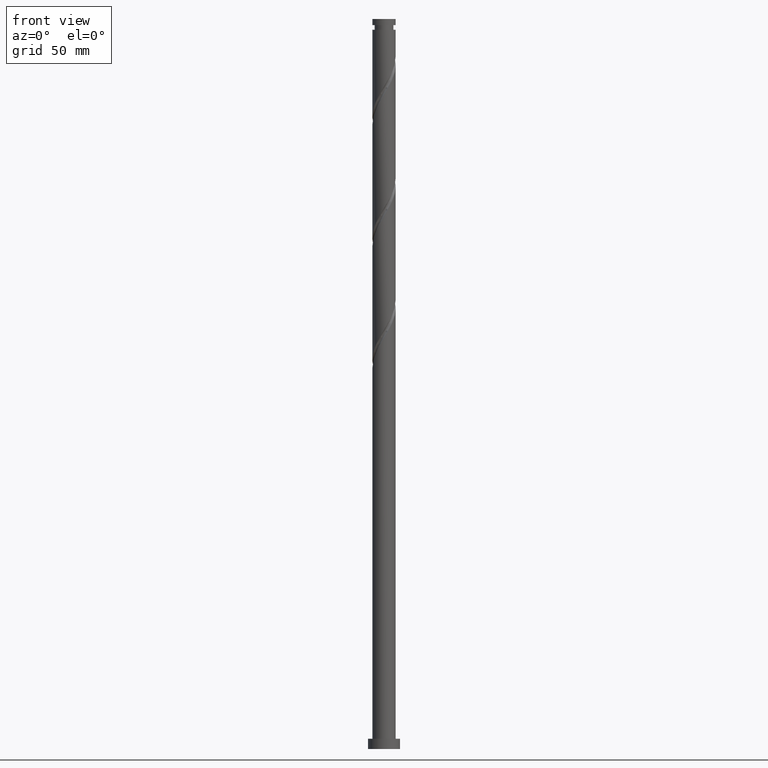
[diagram: clean part render]
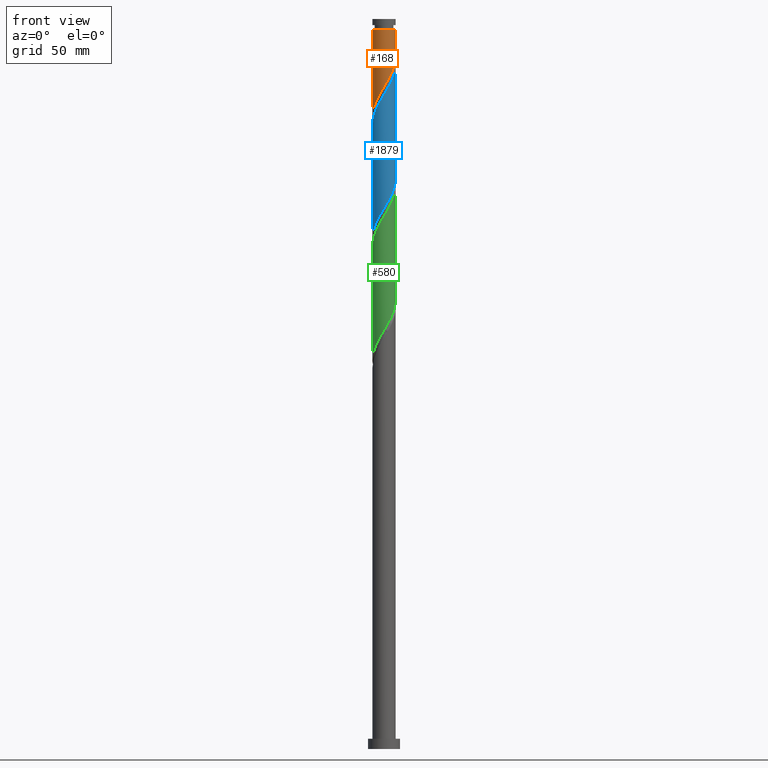
[diagram: same view with three faces highlighted in distinct colors, each labeled with its STEP entity id]
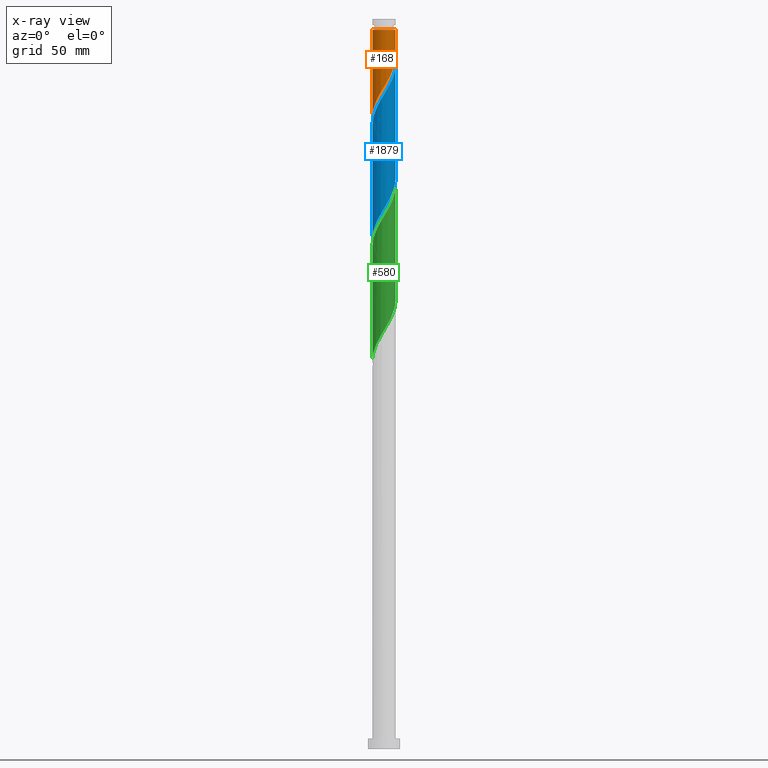
[diagram: x-ray of the same camera — body ghosted, the three highlighted faces saturated]
A machine part, front view with three faces highlighted in distinct colors.
The next image is the same camera in x-ray (body ghosted, the three faces saturated) — at least one of them is partly hidden behind the body in this view.
Their STEP definitions:

[orange] entity #168 — the highlighted cylindrical surface (edge-blend (fillet) strip) has radius 8 mm, axis along (-0, -0, -1).
#48 = CARTESIAN_POINT ( 'NONE',  ( -3.817644651523122157, -7.074349788705234232, 447.0281742140034567 ) ) ;
#81 = EDGE_CURVE ( 'NONE', #243, #973, #880, .T. ) ;
#89 = FACE_OUTER_BOUND ( 'NONE', #525, .T. ) ;
#168 = ADVANCED_FACE ( 'NONE', ( #89 ), #1574, .T. ) ;
#170 = VERTEX_POINT ( 'NONE', #461 ) ;
#182 = VERTEX_POINT ( 'NONE', #1888 ) ;
#196 = CARTESIAN_POINT ( 'NONE',  ( 7.840000000000000746, -1.591979899370599583, 471.7677575473367142 ) ) ;
#206 = CARTESIAN_POINT ( 'NONE',  ( 3.031987717150562478, -7.403178404107801924, 458.7469242140033430 ) ) ;
#218 = CARTESIAN_POINT ( 'NONE',  ( -5.124426858357232106, -6.193632616776999278, 444.4240075473368847 ) ) ;
#227 = DIRECTION ( 'NONE',  ( -0.000000000000000000, -0.000000000000000000, -1.000000000000000000 ) ) ;
#243 = VERTEX_POINT ( 'NONE', #1753 ) ;
#328 = CARTESIAN_POINT ( 'NONE',  ( -8.000000000000000000, 0.000000000000000000, 500.0000000000000000 ) ) ;
#349 = CARTESIAN_POINT ( 'NONE',  ( 0.7560426422623218734, -8.003076604740073208, 454.8406742140033998 ) ) ;
#370 = CARTESIAN_POINT ( 'NONE',  ( 4.418017382144904026, -6.669416946860161843, 461.3510908806701423 ) ) ;
#380 = CARTESIAN_POINT ( 'NONE',  ( 5.634265116796108863, -5.679353536596797092, 463.9552575473368279 ) ) ;
#391 = CARTESIAN_POINT ( 'NONE',  ( 7.999999999999998224, -0.01594122699408290211, 474.3982676374829452 ) ) ;
#461 = CARTESIAN_POINT ( 'NONE',  ( -7.999999999999952927, 0.000000000000000000, 492.6010908806701423 ) ) ;
#507 = CARTESIAN_POINT ( 'NONE',  ( -5.679353536596797092, -5.634265116796109751, 443.1219242140033430 ) ) ;
#525 = EDGE_LOOP ( 'NONE', ( #1483, #1766, #744, #791 ) ) ;
#611 = CARTESIAN_POINT ( 'NONE',  ( 0.000000000000000000, 0.000000000000000000, 500.0000000000000000 ) ) ;
#628 = CARTESIAN_POINT ( 'NONE',  ( 7.999999999999998224, -3.910315218699910762E-15, 474.4246211920001883 ) ) ;
#675 = CARTESIAN_POINT ( 'NONE',  ( -0.03188232739405235522, -7.999936469572738851, 453.5385908806699717 ) ) ;
#695 = CARTESIAN_POINT ( 'NONE',  ( 8.000000000000000000, 9.797174393178825657E-16, 500.0000000000000000 ) ) ;
#696 = CARTESIAN_POINT ( 'NONE',  ( -7.701803129331646680, -2.302838286826536240, 436.6115075473368279 ) ) ;
#744 = ORIENTED_EDGE ( 'NONE', *, *, #1435, .T. ) ;
#765 = DIRECTION ( 'NONE',  ( -1.000000000000000000, 0.000000000000000000, 0.000000000000000000 ) ) ;
#769 = AXIS2_PLACEMENT_3D ( 'NONE', #775, #1426, #765 ) ;
#775 = CARTESIAN_POINT ( 'NONE',  ( 0.000000000000000000, 0.000000000000000000, 492.6010908806701423 ) ) ;
#791 = ORIENTED_EDGE ( 'NONE', *, *, #1819, .F. ) ;
#827 = CARTESIAN_POINT ( 'NONE',  ( 3.761137147474592712, -7.104553678883958057, 460.0490075473368279 ) ) ;
#839 = CARTESIAN_POINT ( 'NONE',  ( -2.364152501690766517, -7.683203665594589005, 449.6323408806701423 ) ) ;
#850 = CARTESIAN_POINT ( 'NONE',  ( 1.529440464544428835, -7.852439867035858612, 456.1427575473367710 ) ) ;
#862 = CARTESIAN_POINT ( 'NONE',  ( 7.074349788705234232, -3.817644651523122601, 467.8615075473367710 ) ) ;
#880 = LINE ( 'NONE', #695, #2093 ) ;
#903 = EDGE_CURVE ( 'NONE', #243, #170, #1732, .T. ) ;
#920 = DIRECTION ( 'NONE',  ( -0.000000000000000000, -0.000000000000000000, -1.000000000000000000 ) ) ;
#973 = VERTEX_POINT ( 'NONE', #628 ) ;
#975 = DIRECTION ( 'NONE',  ( -0.000000000000000000, -0.000000000000000000, -1.000000000000000000 ) ) ;
#1017 = CARTESIAN_POINT ( 'NONE',  ( 7.999999999999998224, -3.910315218699910762E-15, 474.4246211920001315 ) ) ;
#1029 = CARTESIAN_POINT ( 'NONE',  ( -4.471035754940177576, -6.633991202741117199, 445.7260908806700854 ) ) ;
#1038 = CARTESIAN_POINT ( 'NONE',  ( -1.591979899370598917, -7.840000000000000746, 450.9344242140033998 ) ) ;
#1176 = CARTESIAN_POINT ( 'NONE',  ( -6.669416946860161843, -4.418017382144904026, 440.5177575473367710 ) ) ;
#1186 = CARTESIAN_POINT ( 'NONE',  ( 7.996796334405404494, -0.8198072970504346468, 473.0698408806701423 ) ) ;
#1197 = CARTESIAN_POINT ( 'NONE',  ( -7.999999999999998224, 4.708034433954229280E-15, 432.7579545253335596 ) ) ;
#1314 = CARTESIAN_POINT ( 'NONE',  ( 6.633991202741113646, -4.471035754940181128, 466.5594242140034567 ) ) ;
#1348 = CARTESIAN_POINT ( 'NONE',  ( 7.378776727149911174, -3.090898576606947223, 469.1635908806700286 ) ) ;
#1358 = CARTESIAN_POINT ( 'NONE',  ( 7.999936469572738851, -0.03188232739405278543, 474.3719242140033430 ) ) ;
#1426 = DIRECTION ( 'NONE',  ( -0.000000000000000000, -0.000000000000000000, -1.000000000000000000 ) ) ;
#1433 =( BOUNDED_CURVE ( )  B_SPLINE_CURVE ( 2, ( #1017, #391, #1358, #1186, #196, #1839, #1348, #862, #1314, #1830, #380, #1850, #370, #827, #206, #1671, #850, #349, #675, #1810, #1038, #839, #1650, #48, #1029, #218, #507, #1512, #1176, #1490, #1501, #696, #1682, #2006, #1197 ),
 .UNSPECIFIED., .F., .T. ) 
 B_SPLINE_CURVE_WITH_KNOTS ( ( 3, 2, 2, 2, 2, 2, 2, 2, 2, 2, 2, 2, 2, 2, 2, 2, 2, 3 ),
 ( 0.3045286902180871502, 0.3046875000000000000, 0.3125000000000000000, 0.3203125000000000000, 0.3281250000000000000, 0.3359375000000000000, 0.3437500000000000000, 0.3515625000000000000, 0.3593750000000000000, 0.3671875000000000000, 0.3750000000000000000, 0.3828125000000000000, 0.3906250000000000000, 0.3984375000000000000, 0.4062500000000000000, 0.4140625000000000000, 0.4218750000000000000, 0.4295286902180873723 ),
 .UNSPECIFIED. ) 
 CURVE ( )  GEOMETRIC_REPRESENTATION_ITEM ( )  RATIONAL_B_SPLINE_CURVE ( ( 0.9089165573359369033, 0.9090019243628416623, 0.9090909090909334855, 0.9047133878838395926, 0.9090909090909334855, 0.9047133878838395926, 0.9090909090909334855, 0.9047133878838395926, 0.9090909090909334855, 0.9047133878838395926, 0.9090909090909334855, 0.9047133878838395926, 0.9090909090909334855, 0.9047133878838395926, 0.9090909090909334855, 0.9047133878838395926, 0.9090909090909334855, 0.9047133878838395926, 0.9090909090909334855, 0.9047133878838395926, 0.9090909090909334855, 0.9047133878838395926, 0.9090909090909334855, 0.9047133878838395926, 0.9090909090909334855, 0.9047133878838395926, 0.9090909090909334855, 0.9047133878838395926, 0.9090909090909334855, 0.9047133878838395926, 0.9090909090909334855, 0.9047133878838395926, 0.9090909090909334855, 0.9048023726119313048, 0.9089165573359370143 ) ) 
 REPRESENTATION_ITEM ( '' )  );
#1435 = EDGE_CURVE ( 'NONE', #170, #182, #1514, .T. ) ;
#1483 = ORIENTED_EDGE ( 'NONE', *, *, #81, .F. ) ;
#1490 = CARTESIAN_POINT ( 'NONE',  ( -7.104553678883958057, -3.761137147474594045, 439.2156742140033430 ) ) ;
#1501 = CARTESIAN_POINT ( 'NONE',  ( -7.403178404107800148, -3.031987717150562478, 437.9135908806701991 ) ) ;
#1512 = CARTESIAN_POINT ( 'NONE',  ( -6.234280214836362966, -5.074897616815214896, 441.8198408806701991 ) ) ;
#1514 = LINE ( 'NONE', #328, #1610 ) ;
#1574 = CYLINDRICAL_SURFACE ( 'NONE', #1895, 8.000000000000000000 ) ;
#1610 = VECTOR ( 'NONE', #975, 1000.000000000000000 ) ;
#1650 = CARTESIAN_POINT ( 'NONE',  ( -3.090898576606947223, -7.378776727149912062, 448.3302575473368279 ) ) ;
#1671 = CARTESIAN_POINT ( 'NONE',  ( 2.302838286826536240, -7.701803129331646680, 457.4448408806701991 ) ) ;
#1682 = CARTESIAN_POINT ( 'NONE',  ( -7.852439867035857723, -1.529440464544429279, 435.3094242140033998 ) ) ;
#1732 = CIRCLE ( 'NONE', #769, 7.999999999999952927 ) ;
#1753 = CARTESIAN_POINT ( 'NONE',  ( 7.999999999999952927, 9.797174393178798047E-16, 492.6010908806701423 ) ) ;
#1766 = ORIENTED_EDGE ( 'NONE', *, *, #903, .T. ) ;
#1810 = CARTESIAN_POINT ( 'NONE',  ( -0.8198072970504305390, -7.996796334405404494, 452.2365075473368279 ) ) ;
#1819 = EDGE_CURVE ( 'NONE', #973, #182, #1433, .T. ) ;
#1830 = CARTESIAN_POINT ( 'NONE',  ( 6.193632616776999278, -5.124426858357232106, 465.2573408806701423 ) ) ;
#1839 = CARTESIAN_POINT ( 'NONE',  ( 7.683203665594592557, -2.364152501690764296, 470.4656742140033998 ) ) ;
#1850 = CARTESIAN_POINT ( 'NONE',  ( 5.074897616815213119, -6.234280214836365630, 462.6531742140035135 ) ) ;
#1888 = CARTESIAN_POINT ( 'NONE',  ( -7.999999999999998224, 4.708034433954230069E-15, 432.7579545253335596 ) ) ;
#1895 = AXIS2_PLACEMENT_3D ( 'NONE', #611, #920, #1918 ) ;
#1918 = DIRECTION ( 'NONE',  ( -1.000000000000000000, 0.000000000000000000, 0.000000000000000000 ) ) ;
#2006 = CARTESIAN_POINT ( 'NONE',  ( -8.000000000000005329, -0.7718385194318326814, 434.0339346307495703 ) ) ;
#2093 = VECTOR ( 'NONE', #227, 1000.000000000000000 ) ;

[blue] entity #1879 — the highlighted cylindrical surface (edge-blend (fillet) strip) has radius 8 mm, axis along (-0, -0, -1).
#14 = CARTESIAN_POINT ( 'NONE',  ( -7.999936469572752173, -0.03188232739405161970, 427.4969242140035135 ) ) ;
#29 = CARTESIAN_POINT ( 'NONE',  ( -7.996796334405415152, -0.8198072970504290957, 428.7990075473367710 ) ) ;
#50 =( BOUNDED_CURVE ( )  B_SPLINE_CURVE ( 2, ( #288, #1227, #1876, #420, #1744, #2063, #1259, #1552, #909, #450, #1398, #1068, #1897, #1908, #1216, #408, #1056, #430, #1711, #1723, #247, #898, #279, #257, #929, #87, #735, #1734, #269, #919, #108, #756, #1408, #441, #638 ),
 .UNSPECIFIED., .F., .T. ) 
 B_SPLINE_CURVE_WITH_KNOTS ( ( 3, 2, 2, 2, 2, 2, 2, 2, 2, 2, 2, 2, 2, 2, 2, 2, 2, 3 ),
 ( 0.5545286902180872612, 0.5546875000000000000, 0.5625000000000000000, 0.5703125000000000000, 0.5781250000000000000, 0.5859375000000000000, 0.5937500000000000000, 0.6015625000000000000, 0.6093750000000000000, 0.6171875000000000000, 0.6250000000000000000, 0.6328125000000000000, 0.6406250000000000000, 0.6484375000000000000, 0.6562500000000000000, 0.6640625000000000000, 0.6718750000000000000, 0.6795286902180872612 ),
 .UNSPECIFIED. ) 
 CURVE ( )  GEOMETRIC_REPRESENTATION_ITEM ( )  RATIONAL_B_SPLINE_CURVE ( ( 0.9089165573359369033, 0.9090019243628416623, 0.9090909090909334855, 0.9047133878838395926, 0.9090909090909334855, 0.9047133878838395926, 0.9090909090909334855, 0.9047133878838395926, 0.9090909090909334855, 0.9047133878838395926, 0.9090909090909334855, 0.9047133878838395926, 0.9090909090909334855, 0.9047133878838395926, 0.9090909090909334855, 0.9047133878838395926, 0.9090909090909334855, 0.9047133878838395926, 0.9090909090909334855, 0.9047133878838395926, 0.9090909090909334855, 0.9047133878838395926, 0.9090909090909334855, 0.9047133878838395926, 0.9090909090909334855, 0.9047133878838395926, 0.9090909090909334855, 0.9047133878838395926, 0.9090909090909334855, 0.9047133878838395926, 0.9090909090909334855, 0.9047133878838395926, 0.9090909090909334855, 0.9048023726119314158, 0.9089165573359369033 ) ) 
 REPRESENTATION_ITEM ( '' )  );
#58 = CARTESIAN_POINT ( 'NONE',  ( -2.302838286826541125, -7.701803129331653786, 444.4240075473368847 ) ) ;
#63 = VERTEX_POINT ( 'NONE', #238 ) ;
#68 = CARTESIAN_POINT ( 'NONE',  ( 2.364152501690767849, -7.683203665594601439, 452.2365075473367710 ) ) ;
#87 = CARTESIAN_POINT ( 'NONE',  ( -5.124426858357232106, -6.193632616776999278, 361.0906742140035135 ) ) ;
#108 = CARTESIAN_POINT ( 'NONE',  ( -7.403178404107800148, -3.031987717150562478, 354.5802575473367710 ) ) ;
#151 = ORIENTED_EDGE ( 'NONE', *, *, #1584, .F. ) ;
#183 = CARTESIAN_POINT ( 'NONE',  ( -8.000000000000010658, -0.01594122699408167046, 427.4705807905239112 ) ) ;
#198 = LINE ( 'NONE', #1293, #1644 ) ;
#238 = CARTESIAN_POINT ( 'NONE',  ( -7.999999999999998224, 1.585746514809287056E-14, 349.4246211920003020 ) ) ;
#239 = LINE ( 'NONE', #401, #383 ) ;
#247 = CARTESIAN_POINT ( 'NONE',  ( -1.591979899370598917, -7.840000000000000746, 367.6010908806701423 ) ) ;
#257 = CARTESIAN_POINT ( 'NONE',  ( -3.817644651523122157, -7.074349788705234232, 363.6948408806701423 ) ) ;
#269 = CARTESIAN_POINT ( 'NONE',  ( -6.669416946860161843, -4.418017382144904026, 357.1844242140034567 ) ) ;
#272 = CARTESIAN_POINT ( 'NONE',  ( 1.591979899370598250, -7.840000000000009628, 450.9344242140035135 ) ) ;
#279 = CARTESIAN_POINT ( 'NONE',  ( -3.090898576606947223, -7.378776727149912062, 364.9969242140035135 ) ) ;
#288 = CARTESIAN_POINT ( 'NONE',  ( 7.999999999999998224, 7.231660175669996548E-15, 391.0912878586668739 ) ) ;
#360 = CARTESIAN_POINT ( 'NONE',  ( -4.418017382144911132, -6.669416946860166284, 440.5177575473368279 ) ) ;
#383 = VECTOR ( 'NONE', #1704, 1000.000000000000000 ) ;
#401 = CARTESIAN_POINT ( 'NONE',  ( -8.000000000000000000, 0.000000000000000000, 500.0000000000000000 ) ) ;
#408 = CARTESIAN_POINT ( 'NONE',  ( 2.302838286826536240, -7.701803129331646680, 374.1115075473368847 ) ) ;
#420 = CARTESIAN_POINT ( 'NONE',  ( 7.996796334405404494, -0.8198072970504346468, 389.7365075473368279 ) ) ;
#430 = CARTESIAN_POINT ( 'NONE',  ( 0.7560426422623218734, -8.003076604740073208, 371.5073408806700286 ) ) ;
#433 = CARTESIAN_POINT ( 'NONE',  ( 8.000000000000010658, -7.828085757168507768E-17, 469.1108939026734106 ) ) ;
#441 = CARTESIAN_POINT ( 'NONE',  ( -8.000000000000001776, -0.7718385194318436726, 350.7006012974162559 ) ) ;
#450 = CARTESIAN_POINT ( 'NONE',  ( 6.193632616776999278, -5.124426858357232106, 381.9240075473368279 ) ) ;
#484 =( BOUNDED_CURVE ( )  B_SPLINE_CURVE ( 2, ( #1326, #183, #14, #29, #1976, #687, #706, #1987, #519, #1153, #531, #1167, #360, #1997, #541, #58, #1005, #551, #1659, #1060, #272, #68, #561, #1391, #1881, #1049, #739, #891, #1555, #1567, #1889, #2026, #1726, #1380, #433 ),
 .UNSPECIFIED., .F., .T. ) 
 B_SPLINE_CURVE_WITH_KNOTS ( ( 3, 2, 2, 2, 2, 2, 2, 2, 2, 2, 2, 2, 2, 2, 2, 2, 2, 3 ),
 ( 0.5545286902180871502, 0.5546875000000000000, 0.5625000000000000000, 0.5703125000000000000, 0.5781250000000000000, 0.5859375000000000000, 0.5937500000000000000, 0.6015625000000000000, 0.6093750000000000000, 0.6171875000000000000, 0.6250000000000000000, 0.6328125000000000000, 0.6406250000000000000, 0.6484375000000000000, 0.6562500000000000000, 0.6640625000000000000, 0.6718750000000000000, 0.6795286902180874833 ),
 .UNSPECIFIED. ) 
 CURVE ( )  GEOMETRIC_REPRESENTATION_ITEM ( )  RATIONAL_B_SPLINE_CURVE ( ( 0.9089165573359422323, 0.9090019243628469914, 0.9090909090909388146, 0.9047133878838449217, 0.9090909090909388146, 0.9047133878838449217, 0.9090909090909388146, 0.9047133878838449217, 0.9090909090909388146, 0.9047133878838449217, 0.9090909090909388146, 0.9047133878838449217, 0.9090909090909388146, 0.9047133878838449217, 0.9090909090909388146, 0.9047133878838449217, 0.9090909090909388146, 0.9047133878838449217, 0.9090909090909388146, 0.9047133878838449217, 0.9090909090909388146, 0.9047133878838449217, 0.9090909090909388146, 0.9047133878838449217, 0.9090909090909388146, 0.9047133878838449217, 0.9090909090909388146, 0.9047133878838449217, 0.9090909090909388146, 0.9047133878838449217, 0.9090909090909388146, 0.9047133878838449217, 0.9090909090909388146, 0.9048023726119365229, 0.9089165573359425654 ) ) 
 REPRESENTATION_ITEM ( '' )  );
#519 = CARTESIAN_POINT ( 'NONE',  ( -6.633991202741127857, -4.471035754940181128, 435.3094242140034567 ) ) ;
#531 = CARTESIAN_POINT ( 'NONE',  ( -5.634265116796117745, -5.679353536596803309, 437.9135908806701991 ) ) ;
#541 = CARTESIAN_POINT ( 'NONE',  ( -3.031987717150570028, -7.403178404107809918, 443.1219242140035135 ) ) ;
#551 = CARTESIAN_POINT ( 'NONE',  ( -0.7560426422623260923, -8.003076604740083866, 447.0281742140033998 ) ) ;
#561 = CARTESIAN_POINT ( 'NONE',  ( 3.090898576606948556, -7.378776727149924497, 453.5385908806701991 ) ) ;
#638 = CARTESIAN_POINT ( 'NONE',  ( -7.999999999999998224, 1.585746514809287056E-14, 349.4246211920003020 ) ) ;
#665 = DIRECTION ( 'NONE',  ( -0.000000000000000000, -0.000000000000000000, -1.000000000000000000 ) ) ;
#687 = CARTESIAN_POINT ( 'NONE',  ( -7.683203665594601439, -2.364152501690768293, 431.4031742140033998 ) ) ;
#706 = CARTESIAN_POINT ( 'NONE',  ( -7.378776727149924497, -3.090898576606947223, 432.7052575473368847 ) ) ;
#735 = CARTESIAN_POINT ( 'NONE',  ( -5.679353536596797092, -5.634265116796109751, 359.7885908806700286 ) ) ;
#739 = CARTESIAN_POINT ( 'NONE',  ( 5.679353536596803309, -5.634265116796118633, 458.7469242140035135 ) ) ;
#753 = AXIS2_PLACEMENT_3D ( 'NONE', #994, #665, #1477 ) ;
#756 = CARTESIAN_POINT ( 'NONE',  ( -7.701803129331646680, -2.302838286826536240, 353.2781742140034567 ) ) ;
#817 = DIRECTION ( 'NONE',  ( -0.000000000000000000, -0.000000000000000000, -1.000000000000000000 ) ) ;
#826 = EDGE_LOOP ( 'NONE', ( #151, #1191, #1798, #833 ) ) ;
#833 = ORIENTED_EDGE ( 'NONE', *, *, #956, .F. ) ;
#891 = CARTESIAN_POINT ( 'NONE',  ( 6.234280214836370071, -5.074897616815223778, 460.0490075473368847 ) ) ;
#898 = CARTESIAN_POINT ( 'NONE',  ( -2.364152501690766517, -7.683203665594589005, 366.2990075473368279 ) ) ;
#909 = CARTESIAN_POINT ( 'NONE',  ( 6.633991202741113646, -4.471035754940181128, 383.2260908806700286 ) ) ;
#919 = CARTESIAN_POINT ( 'NONE',  ( -7.104553678883958057, -3.761137147474594045, 355.8823408806701991 ) ) ;
#929 = CARTESIAN_POINT ( 'NONE',  ( -4.471035754940177576, -6.633991202741117199, 362.3927575473367710 ) ) ;
#956 = EDGE_CURVE ( 'NONE', #1148, #63, #50, .T. ) ;
#994 = CARTESIAN_POINT ( 'NONE',  ( 0.000000000000000000, 0.000000000000000000, 500.0000000000000000 ) ) ;
#1005 = CARTESIAN_POINT ( 'NONE',  ( -1.529440464544434386, -7.852439867035869270, 445.7260908806701423 ) ) ;
#1049 = CARTESIAN_POINT ( 'NONE',  ( 5.124426858357238324, -6.193632616777009936, 457.4448408806701423 ) ) ;
#1056 = CARTESIAN_POINT ( 'NONE',  ( 1.529440464544428835, -7.852439867035858612, 372.8094242140034567 ) ) ;
#1060 = CARTESIAN_POINT ( 'NONE',  ( 0.8198072970504286516, -7.996796334405415152, 449.6323408806700854 ) ) ;
#1068 = CARTESIAN_POINT ( 'NONE',  ( 5.074897616815213119, -6.234280214836365630, 379.3198408806701423 ) ) ;
#1138 = CARTESIAN_POINT ( 'NONE',  ( 7.999999999999998224, 7.231660175669996548E-15, 391.0912878586668739 ) ) ;
#1148 = VERTEX_POINT ( 'NONE', #1138 ) ;
#1153 = CARTESIAN_POINT ( 'NONE',  ( -6.193632616777009936, -5.124426858357240100, 436.6115075473369416 ) ) ;
#1167 = CARTESIAN_POINT ( 'NONE',  ( -5.074897616815223778, -6.234280214836370071, 439.2156742140034567 ) ) ;
#1188 = CARTESIAN_POINT ( 'NONE',  ( 8.000000000000010658, -7.828085757168507768E-17, 469.1108939026734106 ) ) ;
#1191 = ORIENTED_EDGE ( 'NONE', *, *, #1904, .F. ) ;
#1216 = CARTESIAN_POINT ( 'NONE',  ( 3.031987717150562478, -7.403178404107801924, 375.4135908806700286 ) ) ;
#1227 = CARTESIAN_POINT ( 'NONE',  ( 7.999999999999998224, -0.01594122699409404598, 391.0649343041495740 ) ) ;
#1259 = CARTESIAN_POINT ( 'NONE',  ( 7.378776727149911174, -3.090898576606947223, 385.8302575473367710 ) ) ;
#1293 = CARTESIAN_POINT ( 'NONE',  ( 8.000000000000000000, 9.797174393178825657E-16, 500.0000000000000000 ) ) ;
#1326 = CARTESIAN_POINT ( 'NONE',  ( -8.000000000000010658, 8.517702835776209769E-15, 427.4442272360066113 ) ) ;
#1338 = FACE_OUTER_BOUND ( 'NONE', #826, .T. ) ;
#1380 = CARTESIAN_POINT ( 'NONE',  ( 8.000000000000017764, -0.7718385194318260201, 467.8349137972574567 ) ) ;
#1391 = CARTESIAN_POINT ( 'NONE',  ( 3.817644651523124821, -7.074349788705244002, 454.8406742140033430 ) ) ;
#1398 = CARTESIAN_POINT ( 'NONE',  ( 5.634265116796108863, -5.679353536596797092, 380.6219242140035703 ) ) ;
#1408 = CARTESIAN_POINT ( 'NONE',  ( -7.852439867035857723, -1.529440464544429279, 351.9760908806701423 ) ) ;
#1477 = DIRECTION ( 'NONE',  ( -1.000000000000000000, 0.000000000000000000, 0.000000000000000000 ) ) ;
#1479 = CARTESIAN_POINT ( 'NONE',  ( -8.000000000000010658, 8.517702835776209769E-15, 427.4442272360066113 ) ) ;
#1523 = CYLINDRICAL_SURFACE ( 'NONE', #753, 8.000000000000000000 ) ;
#1552 = CARTESIAN_POINT ( 'NONE',  ( 7.074349788705234232, -3.817644651523122601, 384.5281742140035135 ) ) ;
#1555 = CARTESIAN_POINT ( 'NONE',  ( 6.669416946860166284, -4.418017382144913796, 461.3510908806700854 ) ) ;
#1567 = CARTESIAN_POINT ( 'NONE',  ( 7.104553678883962498, -3.761137147474604259, 462.6531742140035135 ) ) ;
#1584 = EDGE_CURVE ( 'NONE', #1666, #1148, #198, .T. ) ;
#1638 = VERTEX_POINT ( 'NONE', #1479 ) ;
#1644 = VECTOR ( 'NONE', #817, 1000.000000000000000 ) ;
#1659 = CARTESIAN_POINT ( 'NONE',  ( 0.03188232739404948252, -7.999936469572753062, 448.3302575473369416 ) ) ;
#1666 = VERTEX_POINT ( 'NONE', #1188 ) ;
#1704 = DIRECTION ( 'NONE',  ( -0.000000000000000000, -0.000000000000000000, -1.000000000000000000 ) ) ;
#1711 = CARTESIAN_POINT ( 'NONE',  ( -0.03188232739405235522, -7.999936469572738851, 370.2052575473367710 ) ) ;
#1723 = CARTESIAN_POINT ( 'NONE',  ( -0.8198072970504305390, -7.996796334405404494, 368.9031742140034567 ) ) ;
#1726 = CARTESIAN_POINT ( 'NONE',  ( 7.852439867035869270, -1.529440464544437717, 466.5594242140036272 ) ) ;
#1734 = CARTESIAN_POINT ( 'NONE',  ( -6.234280214836362966, -5.074897616815214896, 358.4865075473368847 ) ) ;
#1744 = CARTESIAN_POINT ( 'NONE',  ( 7.840000000000000746, -1.591979899370599583, 388.4344242140034567 ) ) ;
#1798 = ORIENTED_EDGE ( 'NONE', *, *, #2032, .T. ) ;
#1876 = CARTESIAN_POINT ( 'NONE',  ( 7.999936469572738851, -0.03188232739405278543, 391.0385908806700854 ) ) ;
#1879 = ADVANCED_FACE ( 'NONE', ( #1338 ), #1523, .T. ) ;
#1881 = CARTESIAN_POINT ( 'NONE',  ( 4.471035754940180240, -6.633991202741127857, 456.1427575473368279 ) ) ;
#1889 = CARTESIAN_POINT ( 'NONE',  ( 7.403178404107809030, -3.031987717150570028, 463.9552575473368279 ) ) ;
#1897 = CARTESIAN_POINT ( 'NONE',  ( 4.418017382144904026, -6.669416946860161843, 378.0177575473368279 ) ) ;
#1904 = EDGE_CURVE ( 'NONE', #1638, #1666, #484, .T. ) ;
#1908 = CARTESIAN_POINT ( 'NONE',  ( 3.761137147474592712, -7.104553678883958057, 376.7156742140035135 ) ) ;
#1976 = CARTESIAN_POINT ( 'NONE',  ( -7.840000000000009628, -1.591979899370598472, 430.1010908806702560 ) ) ;
#1987 = CARTESIAN_POINT ( 'NONE',  ( -7.074349788705244002, -3.817644651523124821, 434.0073408806700854 ) ) ;
#1997 = CARTESIAN_POINT ( 'NONE',  ( -3.761137147474599818, -7.104553678883965162, 441.8198408806700854 ) ) ;
#2026 = CARTESIAN_POINT ( 'NONE',  ( 7.701803129331653786, -2.302838286826541125, 465.2573408806700286 ) ) ;
#2032 = EDGE_CURVE ( 'NONE', #1638, #63, #239, .T. ) ;
#2063 = CARTESIAN_POINT ( 'NONE',  ( 7.683203665594592557, -2.364152501690764296, 387.1323408806701991 ) ) ;

[green] entity #580 — the highlighted cylindrical surface (edge-blend (fillet) strip) has radius 8 mm, axis along (-0, -0, -1).
#6 = CARTESIAN_POINT ( 'NONE',  ( 0.7560426422623218734, -8.003076604740073208, 288.1740075473368847 ) ) ;
#31 = CARTESIAN_POINT ( 'NONE',  ( -0.03188232739405235522, -7.999936469572738851, 286.8719242140035135 ) ) ;
#40 = CARTESIAN_POINT ( 'NONE',  ( 5.074897616815213119, -6.234280214836365630, 295.9865075473367710 ) ) ;
#90 = CARTESIAN_POINT ( 'NONE',  ( 7.104553678883962498, -3.761137147474604259, 379.3198408806701423 ) ) ;
#102 = CARTESIAN_POINT ( 'NONE',  ( -5.074897616815223778, -6.234280214836370071, 355.8823408806701423 ) ) ;
#111 = CARTESIAN_POINT ( 'NONE',  ( -2.302838286826541125, -7.701803129331653786, 361.0906742140033998 ) ) ;
#153 = CARTESIAN_POINT ( 'NONE',  ( 7.840000000000000746, -1.591979899370599583, 305.1010908806700854 ) ) ;
#171 = CARTESIAN_POINT ( 'NONE',  ( -7.999999999999998224, 1.585746514809287056E-14, 266.0912878586669308 ) ) ;
#250 = CARTESIAN_POINT ( 'NONE',  ( -7.074349788705244002, -3.817644651523124821, 350.6740075473367142 ) ) ;
#254 = VERTEX_POINT ( 'NONE', #289 ) ;
#260 = CARTESIAN_POINT ( 'NONE',  ( -7.996796334405415152, -0.8198072970504290957, 345.4656742140034567 ) ) ;
#285 = CARTESIAN_POINT ( 'NONE',  ( 7.999999999999998224, 7.231660175669996548E-15, 307.7579545253336164 ) ) ;
#289 = CARTESIAN_POINT ( 'NONE',  ( 7.999999999999998224, 7.231660175669996548E-15, 307.7579545253336732 ) ) ;
#362 = CARTESIAN_POINT ( 'NONE',  ( -6.669416946860161843, -4.418017382144904026, 273.8510908806701423 ) ) ;
#372 = CARTESIAN_POINT ( 'NONE',  ( -1.591979899370598917, -7.840000000000000746, 284.2677575473367710 ) ) ;
#412 = CARTESIAN_POINT ( 'NONE',  ( 8.000000000000017764, -0.7718385194318260201, 384.5015804639240287 ) ) ;
#417 = VECTOR ( 'NONE', #966, 1000.000000000000000 ) ;
#423 = CARTESIAN_POINT ( 'NONE',  ( -7.683203665594601439, -2.364152501690768293, 348.0698408806701423 ) ) ;
#443 = CARTESIAN_POINT ( 'NONE',  ( 4.471035754940180240, -6.633991202741127857, 372.8094242140036272 ) ) ;
#487 = CARTESIAN_POINT ( 'NONE',  ( -7.852439867035857723, -1.529440464544429279, 268.6427575473368279 ) ) ;
#497 = CARTESIAN_POINT ( 'NONE',  ( -8.000000000000010658, 8.517702835776209769E-15, 344.1108939026732401 ) ) ;
#527 = DIRECTION ( 'NONE',  ( -1.000000000000000000, 0.000000000000000000, 0.000000000000000000 ) ) ;
#533 = CARTESIAN_POINT ( 'NONE',  ( 2.302838286826536240, -7.701803129331646680, 290.7781742140035703 ) ) ;
#572 = CARTESIAN_POINT ( 'NONE',  ( -7.840000000000009628, -1.591979899370598472, 346.7677575473368279 ) ) ;
#580 = ADVANCED_FACE ( 'NONE', ( #1173 ), #1509, .T. ) ;
#583 = CARTESIAN_POINT ( 'NONE',  ( 3.817644651523124821, -7.074349788705244002, 371.5073408806701991 ) ) ;
#593 = CARTESIAN_POINT ( 'NONE',  ( 7.701803129331653786, -2.302838286826541125, 381.9240075473368279 ) ) ;
#602 = CARTESIAN_POINT ( 'NONE',  ( -5.634265116796117745, -5.679353536596803309, 354.5802575473368847 ) ) ;
#614 = CARTESIAN_POINT ( 'NONE',  ( 7.378776727149911174, -3.090898576606947223, 302.4969242140035135 ) ) ;
#656 = CARTESIAN_POINT ( 'NONE',  ( 6.193632616776999278, -5.124426858357232106, 298.5906742140034567 ) ) ;
#667 = CARTESIAN_POINT ( 'NONE',  ( -3.817644651523122157, -7.074349788705234232, 280.3615075473368847 ) ) ;
#689 = CARTESIAN_POINT ( 'NONE',  ( -0.8198072970504305390, -7.996796334405404494, 285.5698408806701423 ) ) ;
#716 = CARTESIAN_POINT ( 'NONE',  ( 0.03188232739404948252, -7.999936469572753062, 364.9969242140035135 ) ) ;
#750 = CARTESIAN_POINT ( 'NONE',  ( -8.000000000000010658, -0.01594122699405380733, 344.1372474571904831 ) ) ;
#758 = CARTESIAN_POINT ( 'NONE',  ( 7.852439867035869270, -1.529440464544437717, 383.2260908806701991 ) ) ;
#772 = CARTESIAN_POINT ( 'NONE',  ( 7.999936469572738851, -0.03188232739405278543, 307.7052575473367710 ) ) ;
#829 = CARTESIAN_POINT ( 'NONE',  ( 1.529440464544428835, -7.852439867035858612, 289.4760908806700854 ) ) ;
#881 = CARTESIAN_POINT ( 'NONE',  ( -0.7560426422623260923, -8.003076604740083866, 363.6948408806701423 ) ) ;
#901 = CARTESIAN_POINT ( 'NONE',  ( -6.633991202741127857, -4.471035754940181128, 351.9760908806701423 ) ) ;
#912 = CARTESIAN_POINT ( 'NONE',  ( -4.418017382144911132, -6.669416946860166284, 357.1844242140035703 ) ) ;
#921 = CARTESIAN_POINT ( 'NONE',  ( -6.193632616777009936, -5.124426858357240100, 353.2781742140035135 ) ) ;
#935 = CARTESIAN_POINT ( 'NONE',  ( 7.999999999999998224, -0.01594122699407175131, 307.7316009708163733 ) ) ;
#966 = DIRECTION ( 'NONE',  ( -0.000000000000000000, -0.000000000000000000, -1.000000000000000000 ) ) ;
#985 = CARTESIAN_POINT ( 'NONE',  ( 3.031987717150562478, -7.403178404107801924, 292.0802575473367142 ) ) ;
#999 =( BOUNDED_CURVE ( )  B_SPLINE_CURVE ( 2, ( #285, #935, #772, #1423, #153, #2068, #614, #1263, #1955, #656, #1169, #40, #1340, #1631, #985, #533, #829, #6, #31, #689, #372, #1824, #1019, #667, #1989, #1178, #1317, #1832, #362, #1800, #1007, #1673, #487, #1134, #1789 ),
 .UNSPECIFIED., .F., .T. ) 
 B_SPLINE_CURVE_WITH_KNOTS ( ( 3, 2, 2, 2, 2, 2, 2, 2, 2, 2, 2, 2, 2, 2, 2, 2, 2, 3 ),
 ( 0.8045286902180870392, 0.8046875000000000000, 0.8125000000000000000, 0.8203125000000000000, 0.8281250000000000000, 0.8359375000000000000, 0.8437500000000000000, 0.8515625000000000000, 0.8593750000000000000, 0.8671875000000000000, 0.8750000000000000000, 0.8828125000000000000, 0.8906250000000000000, 0.8984375000000000000, 0.9062500000000000000, 0.9140625000000000000, 0.9218750000000000000, 0.9295286902180872612 ),
 .UNSPECIFIED. ) 
 CURVE ( )  GEOMETRIC_REPRESENTATION_ITEM ( )  RATIONAL_B_SPLINE_CURVE ( ( 0.9089165573359367922, 0.9090019243628416623, 0.9090909090909334855, 0.9047133878838395926, 0.9090909090909334855, 0.9047133878838395926, 0.9090909090909334855, 0.9047133878838395926, 0.9090909090909334855, 0.9047133878838395926, 0.9090909090909334855, 0.9047133878838395926, 0.9090909090909334855, 0.9047133878838395926, 0.9090909090909334855, 0.9047133878838395926, 0.9090909090909334855, 0.9047133878838395926, 0.9090909090909334855, 0.9047133878838395926, 0.9090909090909334855, 0.9047133878838395926, 0.9090909090909334855, 0.9047133878838395926, 0.9090909090909334855, 0.9047133878838395926, 0.9090909090909334855, 0.9047133878838395926, 0.9090909090909334855, 0.9047133878838395926, 0.9090909090909334855, 0.9047133878838395926, 0.9090909090909334855, 0.9048023726119314158, 0.9089165573359369033 ) ) 
 REPRESENTATION_ITEM ( '' )  );
#1007 = CARTESIAN_POINT ( 'NONE',  ( -7.403178404107800148, -3.031987717150562478, 271.2469242140035135 ) ) ;
#1019 = CARTESIAN_POINT ( 'NONE',  ( -3.090898576606947223, -7.378776727149912062, 281.6635908806701991 ) ) ;
#1046 = CARTESIAN_POINT ( 'NONE',  ( 0.000000000000000000, 0.000000000000000000, 500.0000000000000000 ) ) ;
#1071 = CARTESIAN_POINT ( 'NONE',  ( -8.000000000000010658, 8.517702835776209769E-15, 344.1108939026732401 ) ) ;
#1134 = CARTESIAN_POINT ( 'NONE',  ( -8.000000000000001776, -0.7718385194318436726, 267.3672679640829983 ) ) ;
#1161 =( BOUNDED_CURVE ( )  B_SPLINE_CURVE ( 2, ( #1071, #750, #1716, #260, #572, #423, #1575, #250, #901, #921, #602, #102, #912, #1402, #1535, #111, #1252, #881, #716, #1369, #1869, #1900, #2037, #583, #443, #1242, #2047, #1737, #1220, #90, #1231, #593, #758, #412, #1410 ),
 .UNSPECIFIED., .F., .T. ) 
 B_SPLINE_CURVE_WITH_KNOTS ( ( 3, 2, 2, 2, 2, 2, 2, 2, 2, 2, 2, 2, 2, 2, 2, 2, 2, 3 ),
 ( 0.3045286902180868727, 0.3046875000000000000, 0.3125000000000000000, 0.3203125000000000000, 0.3281250000000000000, 0.3359375000000000000, 0.3437500000000000000, 0.3515625000000000000, 0.3593750000000000000, 0.3671875000000000000, 0.3750000000000000000, 0.3828125000000000000, 0.3906250000000000000, 0.3984375000000000000, 0.4062500000000000000, 0.4140625000000000000, 0.4218750000000000000, 0.4295286902180874833 ),
 .UNSPECIFIED. ) 
 CURVE ( )  GEOMETRIC_REPRESENTATION_ITEM ( )  RATIONAL_B_SPLINE_CURVE ( ( 0.9089165573359418993, 0.9090019243628468804, 0.9090909090909388146, 0.9047133878838449217, 0.9090909090909388146, 0.9047133878838449217, 0.9090909090909388146, 0.9047133878838449217, 0.9090909090909388146, 0.9047133878838449217, 0.9090909090909388146, 0.9047133878838449217, 0.9090909090909388146, 0.9047133878838449217, 0.9090909090909388146, 0.9047133878838449217, 0.9090909090909388146, 0.9047133878838449217, 0.9090909090909388146, 0.9047133878838449217, 0.9090909090909388146, 0.9047133878838449217, 0.9090909090909388146, 0.9047133878838449217, 0.9090909090909388146, 0.9047133878838449217, 0.9090909090909388146, 0.9047133878838449217, 0.9090909090909388146, 0.9047133878838449217, 0.9090909090909388146, 0.9047133878838449217, 0.9090909090909388146, 0.9048023726119365229, 0.9089165573359425654 ) ) 
 REPRESENTATION_ITEM ( '' )  );
#1169 = CARTESIAN_POINT ( 'NONE',  ( 5.634265116796108863, -5.679353536596797092, 297.2885908806700854 ) ) ;
#1173 = FACE_OUTER_BOUND ( 'NONE', #1619, .T. ) ;
#1178 = CARTESIAN_POINT ( 'NONE',  ( -5.124426858357232106, -6.193632616776999278, 277.7573408806700854 ) ) ;
#1220 = CARTESIAN_POINT ( 'NONE',  ( 6.669416946860166284, -4.418017382144913796, 378.0177575473368847 ) ) ;
#1231 = CARTESIAN_POINT ( 'NONE',  ( 7.403178404107809030, -3.031987717150570028, 380.6219242140035135 ) ) ;
#1242 = CARTESIAN_POINT ( 'NONE',  ( 5.124426858357238324, -6.193632616777009936, 374.1115075473368279 ) ) ;
#1252 = CARTESIAN_POINT ( 'NONE',  ( -1.529440464544434386, -7.852439867035869270, 362.3927575473368279 ) ) ;
#1263 = CARTESIAN_POINT ( 'NONE',  ( 7.074349788705234232, -3.817644651523122601, 301.1948408806700854 ) ) ;
#1317 = CARTESIAN_POINT ( 'NONE',  ( -5.679353536596797092, -5.634265116796109751, 276.4552575473367142 ) ) ;
#1340 = CARTESIAN_POINT ( 'NONE',  ( 4.418017382144904026, -6.669416946860161843, 294.6844242140035135 ) ) ;
#1360 = EDGE_CURVE ( 'NONE', #1607, #1873, #1446, .T. ) ;
#1369 = CARTESIAN_POINT ( 'NONE',  ( 0.8198072970504286516, -7.996796334405415152, 366.2990075473368279 ) ) ;
#1399 = EDGE_CURVE ( 'NONE', #254, #1873, #999, .T. ) ;
#1402 = CARTESIAN_POINT ( 'NONE',  ( -3.761137147474599818, -7.104553678883965162, 358.4865075473367142 ) ) ;
#1410 = CARTESIAN_POINT ( 'NONE',  ( 8.000000000000012434, 1.106742219668252345E-14, 385.7775605693399257 ) ) ;
#1423 = CARTESIAN_POINT ( 'NONE',  ( 7.996796334405404494, -0.8198072970504346468, 306.4031742140035135 ) ) ;
#1430 = ORIENTED_EDGE ( 'NONE', *, *, #1360, .T. ) ;
#1446 = LINE ( 'NONE', #1934, #417 ) ;
#1508 = VECTOR ( 'NONE', #2054, 1000.000000000000000 ) ;
#1509 = CYLINDRICAL_SURFACE ( 'NONE', #2059, 8.000000000000000000 ) ;
#1525 = CARTESIAN_POINT ( 'NONE',  ( 8.000000000000012434, 1.106742219668252345E-14, 385.7775605693399825 ) ) ;
#1535 = CARTESIAN_POINT ( 'NONE',  ( -3.031987717150570028, -7.403178404107809918, 359.7885908806701991 ) ) ;
#1575 = CARTESIAN_POINT ( 'NONE',  ( -7.378776727149924497, -3.090898576606947223, 349.3719242140034567 ) ) ;
#1607 = VERTEX_POINT ( 'NONE', #497 ) ;
#1619 = EDGE_LOOP ( 'NONE', ( #1649, #1845, #1430, #1863 ) ) ;
#1631 = CARTESIAN_POINT ( 'NONE',  ( 3.761137147474592712, -7.104553678883958057, 293.3823408806701991 ) ) ;
#1649 = ORIENTED_EDGE ( 'NONE', *, *, #1970, .F. ) ;
#1673 = CARTESIAN_POINT ( 'NONE',  ( -7.701803129331646680, -2.302838286826536240, 269.9448408806700854 ) ) ;
#1692 = LINE ( 'NONE', #2016, #1508 ) ;
#1716 = CARTESIAN_POINT ( 'NONE',  ( -7.999936469572752173, -0.03188232739405161970, 344.1635908806701423 ) ) ;
#1720 = VERTEX_POINT ( 'NONE', #1525 ) ;
#1737 = CARTESIAN_POINT ( 'NONE',  ( 6.234280214836370071, -5.074897616815223778, 376.7156742140034567 ) ) ;
#1789 = CARTESIAN_POINT ( 'NONE',  ( -7.999999999999998224, 1.585746514809287056E-14, 266.0912878586669308 ) ) ;
#1800 = CARTESIAN_POINT ( 'NONE',  ( -7.104553678883958057, -3.761137147474594045, 272.5490075473368279 ) ) ;
#1824 = CARTESIAN_POINT ( 'NONE',  ( -2.364152501690766517, -7.683203665594589005, 282.9656742140035135 ) ) ;
#1832 = CARTESIAN_POINT ( 'NONE',  ( -6.234280214836362966, -5.074897616815214896, 275.1531742140036272 ) ) ;
#1845 = ORIENTED_EDGE ( 'NONE', *, *, #1930, .F. ) ;
#1863 = ORIENTED_EDGE ( 'NONE', *, *, #1399, .F. ) ;
#1869 = CARTESIAN_POINT ( 'NONE',  ( 1.591979899370598250, -7.840000000000009628, 367.6010908806701991 ) ) ;
#1873 = VERTEX_POINT ( 'NONE', #171 ) ;
#1900 = CARTESIAN_POINT ( 'NONE',  ( 2.364152501690767849, -7.683203665594601439, 368.9031742140035135 ) ) ;
#1930 = EDGE_CURVE ( 'NONE', #1607, #1720, #1161, .T. ) ;
#1934 = CARTESIAN_POINT ( 'NONE',  ( -8.000000000000000000, 0.000000000000000000, 500.0000000000000000 ) ) ;
#1955 = CARTESIAN_POINT ( 'NONE',  ( 6.633991202741113646, -4.471035754940181128, 299.8927575473367142 ) ) ;
#1970 = EDGE_CURVE ( 'NONE', #1720, #254, #1692, .T. ) ;
#1989 = CARTESIAN_POINT ( 'NONE',  ( -4.471035754940177576, -6.633991202741117199, 279.0594242140034567 ) ) ;
#1993 = DIRECTION ( 'NONE',  ( -0.000000000000000000, -0.000000000000000000, -1.000000000000000000 ) ) ;
#2016 = CARTESIAN_POINT ( 'NONE',  ( 8.000000000000000000, 9.797174393178825657E-16, 500.0000000000000000 ) ) ;
#2037 = CARTESIAN_POINT ( 'NONE',  ( 3.090898576606948556, -7.378776727149924497, 370.2052575473368279 ) ) ;
#2047 = CARTESIAN_POINT ( 'NONE',  ( 5.679353536596803309, -5.634265116796118633, 375.4135908806701423 ) ) ;
#2054 = DIRECTION ( 'NONE',  ( -0.000000000000000000, -0.000000000000000000, -1.000000000000000000 ) ) ;
#2059 = AXIS2_PLACEMENT_3D ( 'NONE', #1046, #1993, #527 ) ;
#2068 = CARTESIAN_POINT ( 'NONE',  ( 7.683203665594592557, -2.364152501690764296, 303.7990075473367710 ) ) ;